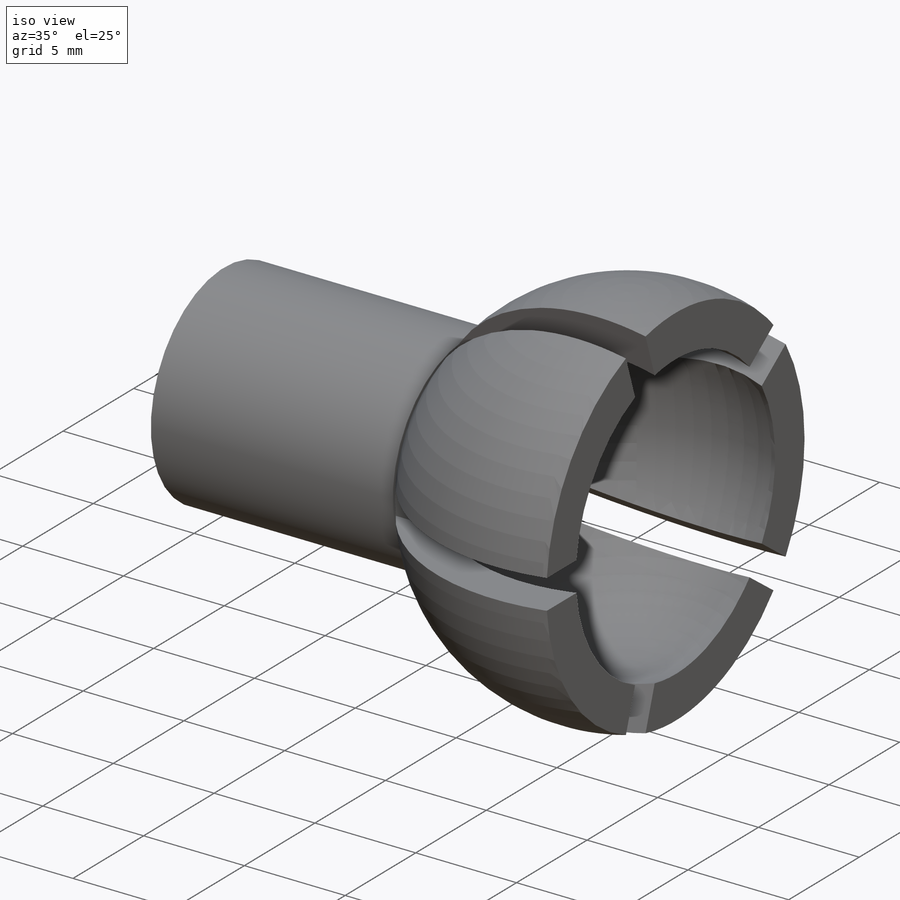
[diagram: iso view]
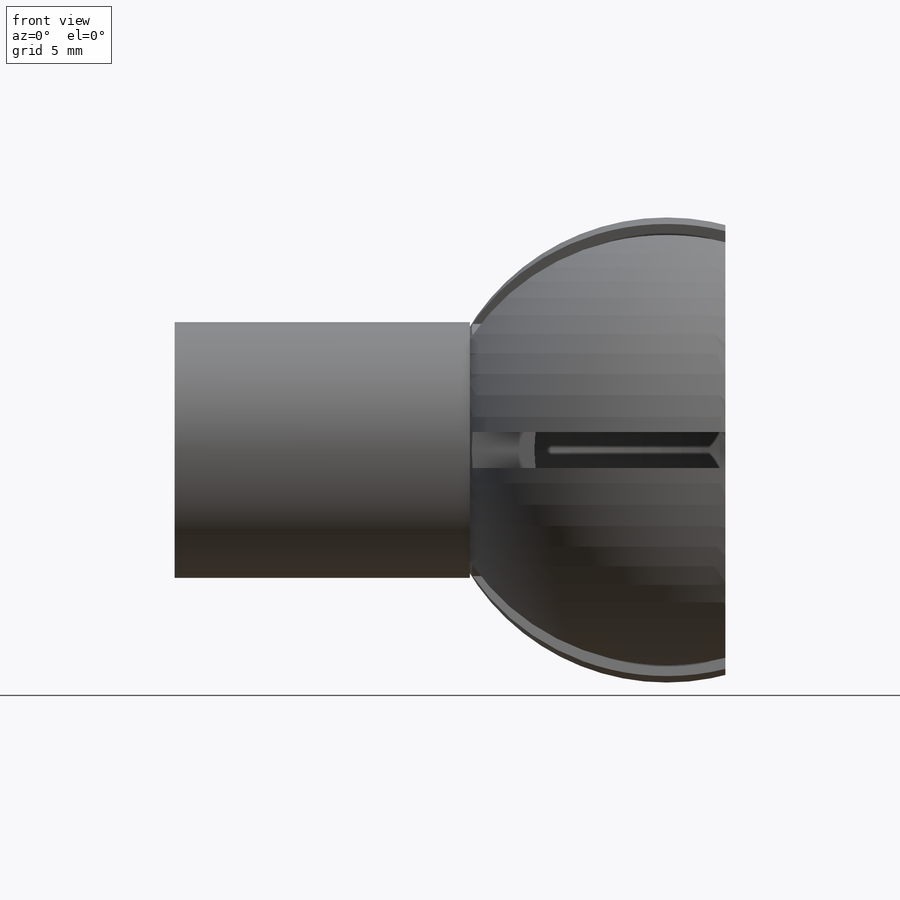
[diagram: front view]
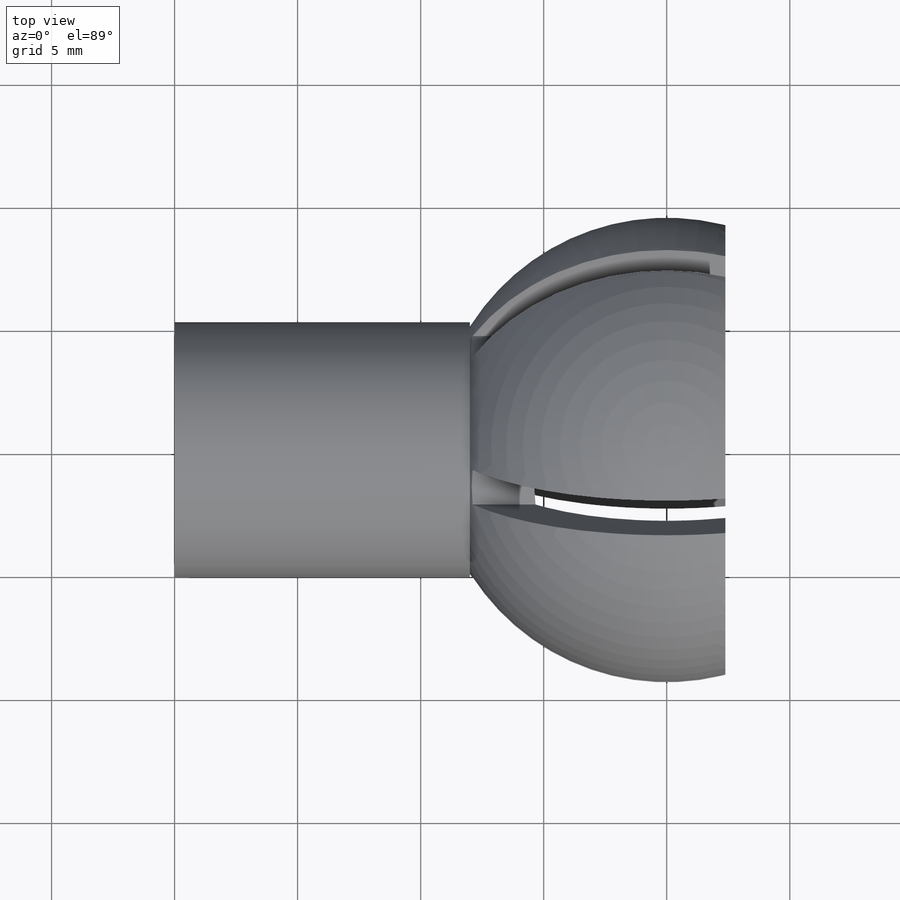
[diagram: top view]
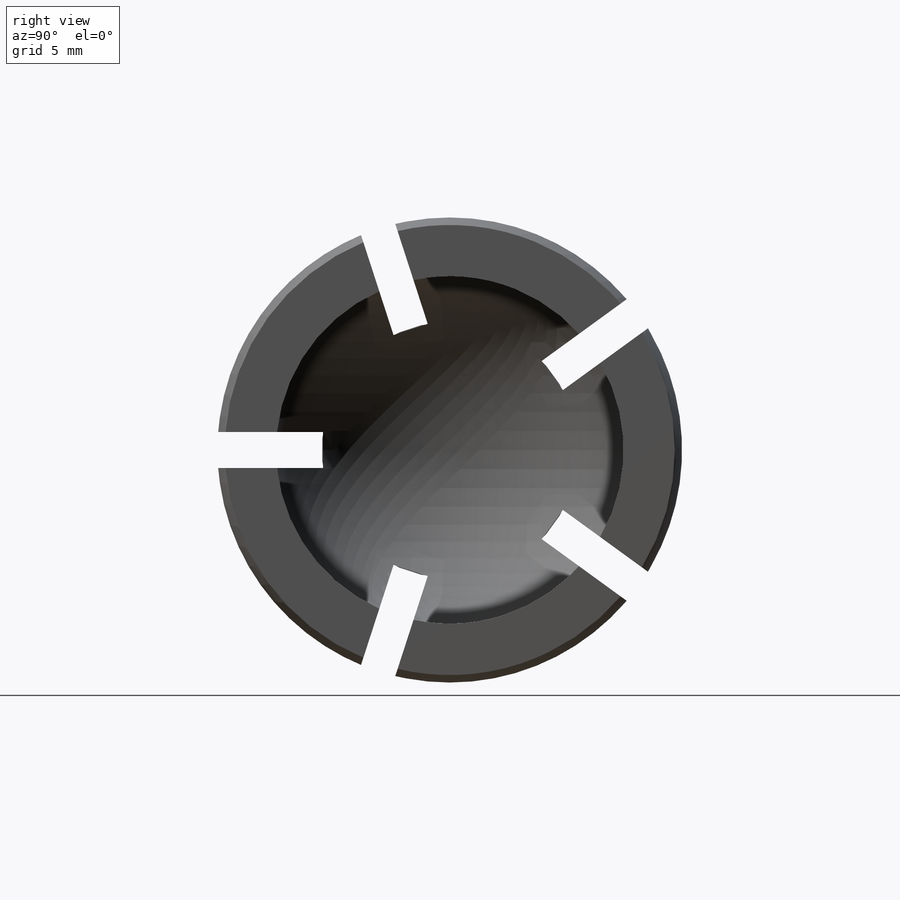
[diagram: right view]
SOLIDWORKS PART (.sldprt)
format: sldprt  version: not decoded by parser v0  size: 320,512 bytes
history: native  units: mm
features: sketch x4, plane x3, cut_extrude x2, material x1, revolve x1, extrude x1 (+9 scaffold rows collapsed)
feature tree (21):
  scaffold x9  (default folders/planes/origin — collapsed)
  material  "Material <sin especificar>"
  plane  "Alzado"
  plane  "Planta"
  plane  "Vista lateral"
  sketch  "Croquis1"  dims[D1=14.9mm D2=2.0mm]
  revolve  "Revolución2"  Angle=360deg
  sketch  "Croquis2"
  cut_extrude  "Cortar-Extruir1"  Depth=27mm
  sketch  "Croquis3"  dims[D1=5.0]
  cut_extrude  "Cortar-Extruir3"  Depth=27mm
  sketch  "Croquis4"  dims[D1=8.2mm D2=4.85mm]
  extrude  "Saliente-Extruir2"  Depth=12mm
decode coverage: 7 of 8 modeling features carry decoded parameters
note: suppression state not decoded; provenance and decode notes live in map.json
